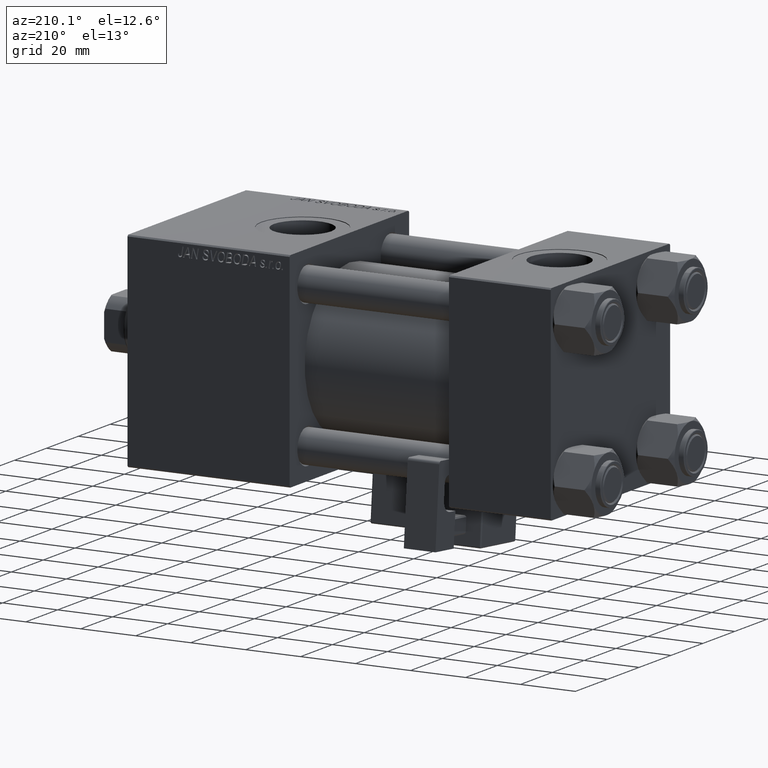
[diagram: clean part render]
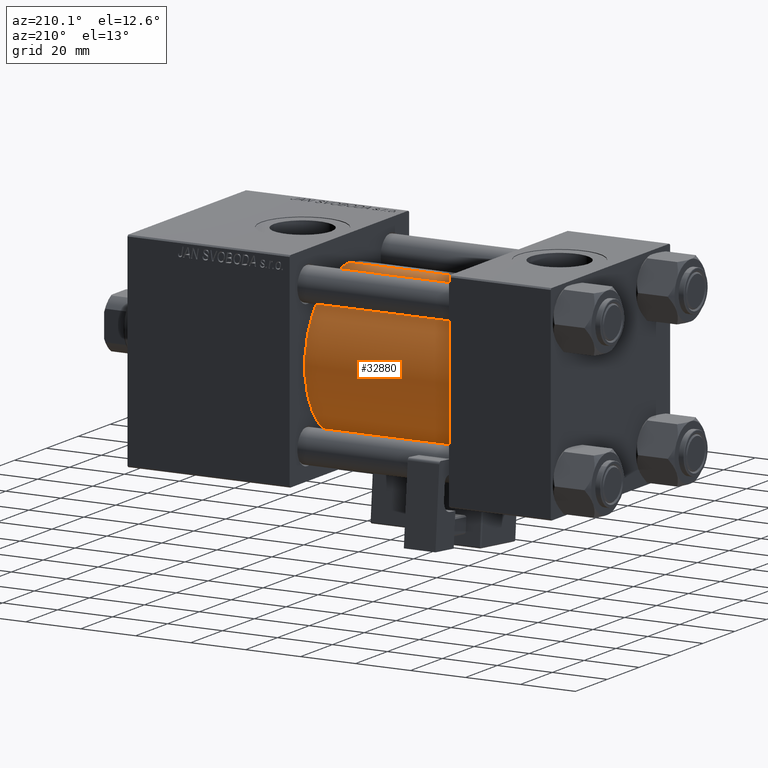
[diagram: same view with one face highlighted and labeled with its STEP entity id]
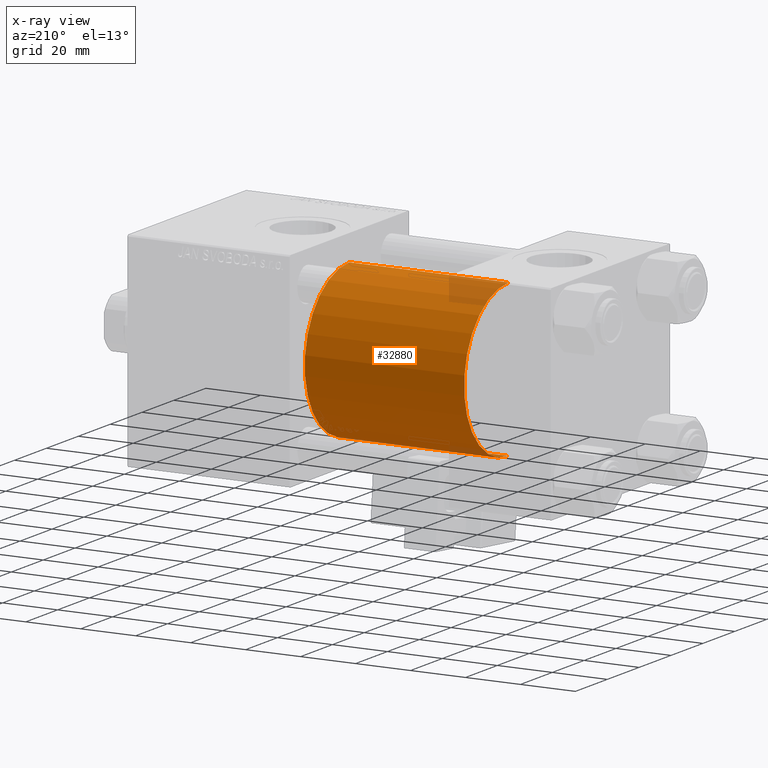
[diagram: x-ray of the same camera — body ghosted, the highlighted face saturated]
A machine part, auxiliary view. The second image highlights one B-rep face of the part: STEP entity #32880.
The next image is the same camera in x-ray: the body ghosted, the highlighted face saturated — about 5% of this face is hidden behind the body in this view.
In plain terms, the highlighted cylindrical surface (partial cylindrical patch) has radius 28 mm, axis along (-1, -0, -0).
Its self-contained STEP definition (entity closure, byte-faithful):
#757 = DIRECTION ( 'NONE',  ( 0.000000000000000000, 0.000000000000000000, 1.000000000000000000 ) ) ;
#4434 = EDGE_CURVE ( 'NONE', #44740, #7979, #10500, .T. ) ;
#5011 = CARTESIAN_POINT ( 'NONE',  ( 95.00000000000000000, 8.269258236473776482E-16, -28.00000000000000000 ) ) ;
#7979 = VERTEX_POINT ( 'NONE', #22739 ) ;
#8615 = CARTESIAN_POINT ( 'NONE',  ( 37.00000000000000000, -2.602085213965210642E-15, 0.000000000000000000 ) ) ;
#8860 = DIRECTION ( 'NONE',  ( 1.000000000000000000, 0.000000000000000000, 0.000000000000000000 ) ) ;
#10133 = CIRCLE ( 'NONE', #19443, 28.00000000000000000 ) ;
#10230 = VECTOR ( 'NONE', #44486, 1000.000000000000000 ) ;
#10500 = CIRCLE ( 'NONE', #38415, 28.00000000000000000 ) ;
#12375 = CARTESIAN_POINT ( 'NONE',  ( 95.00000000000000000, -2.602085213965210642E-15, 28.00000000000000000 ) ) ;
#12440 = LINE ( 'NONE', #5011, #10230 ) ;
#16991 = ORIENTED_EDGE ( 'NONE', *, *, #34947, .F. ) ;
#17439 = FACE_OUTER_BOUND ( 'NONE', #51595, .T. ) ;
#18104 = ORIENTED_EDGE ( 'NONE', *, *, #44213, .T. ) ;
#19443 = AXIS2_PLACEMENT_3D ( 'NONE', #8615, #24508, #24773 ) ;
#21292 = DIRECTION ( 'NONE',  ( 0.000000000000000000, 0.000000000000000000, -1.000000000000000000 ) ) ;
#22202 = AXIS2_PLACEMENT_3D ( 'NONE', #49484, #41516, #757 ) ;
#22739 = CARTESIAN_POINT ( 'NONE',  ( 95.00000000000000000, -2.602085213965210642E-15, 28.00000000000000000 ) ) ;
#23444 = CARTESIAN_POINT ( 'NONE',  ( 37.00000000000000000, -2.602085213965210642E-15, 28.00000000000000000 ) ) ;
#24508 = DIRECTION ( 'NONE',  ( 1.000000000000000000, -0.000000000000000000, 0.000000000000000000 ) ) ;
#24600 = CYLINDRICAL_SURFACE ( 'NONE', #22202, 28.00000000000000000 ) ;
#24773 = DIRECTION ( 'NONE',  ( 0.000000000000000000, 0.000000000000000000, 1.000000000000000000 ) ) ;
#24816 = VECTOR ( 'NONE', #25587, 1000.000000000000000 ) ;
#25587 = DIRECTION ( 'NONE',  ( -1.000000000000000000, -0.000000000000000000, -0.000000000000000000 ) ) ;
#27928 = EDGE_CURVE ( 'NONE', #38336, #51042, #10133, .T. ) ;
#32880 = ADVANCED_FACE ( 'NONE', ( #17439 ), #24600, .T. ) ;
#34947 = EDGE_CURVE ( 'NONE', #7979, #51042, #36478, .T. ) ;
#35644 = CARTESIAN_POINT ( 'NONE',  ( 95.00000000000000000, 8.269258236473776482E-16, -28.00000000000000000 ) ) ;
#35930 = ORIENTED_EDGE ( 'NONE', *, *, #27928, .T. ) ;
#36478 = LINE ( 'NONE', #12375, #24816 ) ;
#38336 = VERTEX_POINT ( 'NONE', #51741 ) ;
#38415 = AXIS2_PLACEMENT_3D ( 'NONE', #45139, #8860, #21292 ) ;
#41516 = DIRECTION ( 'NONE',  ( -1.000000000000000000, -0.000000000000000000, -0.000000000000000000 ) ) ;
#44106 = ORIENTED_EDGE ( 'NONE', *, *, #4434, .F. ) ;
#44213 = EDGE_CURVE ( 'NONE', #44740, #38336, #12440, .T. ) ;
#44486 = DIRECTION ( 'NONE',  ( -1.000000000000000000, -0.000000000000000000, -0.000000000000000000 ) ) ;
#44740 = VERTEX_POINT ( 'NONE', #35644 ) ;
#45139 = CARTESIAN_POINT ( 'NONE',  ( 95.00000000000000000, -2.602085213965210642E-15, 0.000000000000000000 ) ) ;
#49484 = CARTESIAN_POINT ( 'NONE',  ( 95.00000000000000000, -2.602085213965210642E-15, 0.000000000000000000 ) ) ;
#51042 = VERTEX_POINT ( 'NONE', #23444 ) ;
#51595 = EDGE_LOOP ( 'NONE', ( #44106, #18104, #35930, #16991 ) ) ;
#51741 = CARTESIAN_POINT ( 'NONE',  ( 37.00000000000000000, 8.269258236473776482E-16, -28.00000000000000000 ) ) ;